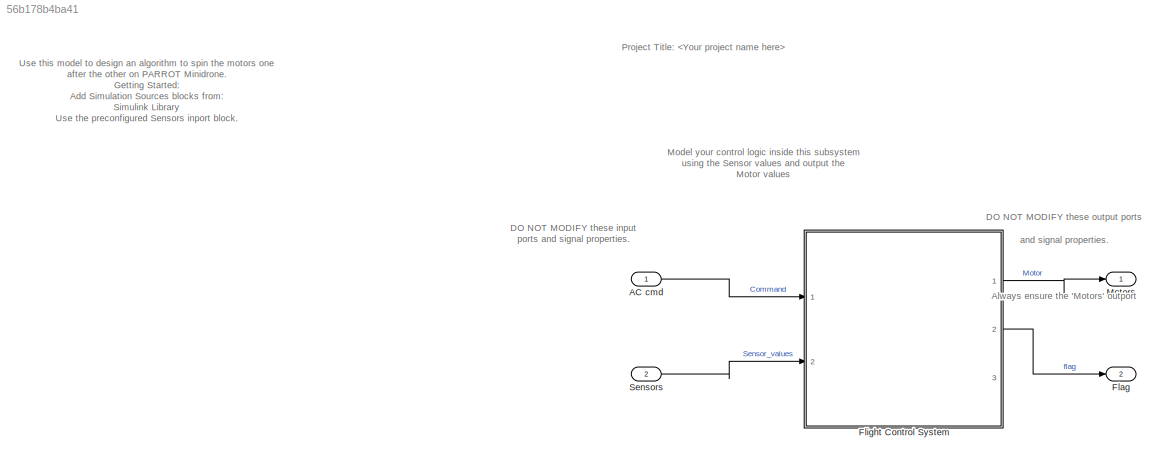
MODEL slx_56b178b4ba41
KIND model
CONFIG AbsTol = auto
CONFIG EnableMultiTasking = off
CONFIG FixedStep = auto
CONFIG InitFcn = load('BusDefinitions.mat')
CONFIG MaxStep = auto
CONFIG MinStep = auto
CONFIG RelTol = 1e-3
CONFIG SampleTimeConstraint = Unconstrained
CONFIG SolverName = FixedStepAuto
CONFIG StartTime = 0.0
CONFIG StopTime = 10
BLOCK [Inport] AC cmd
  BusOutputAsStruct = on
  OutDataTypeStr = Bus: CommandBus
BLOCK [Outport] Flag
  OutDataTypeStr = uint8
  Port = 2
  PortDimensions = 1
  VectorParamsAs1DForOutWhenUnconnected = off
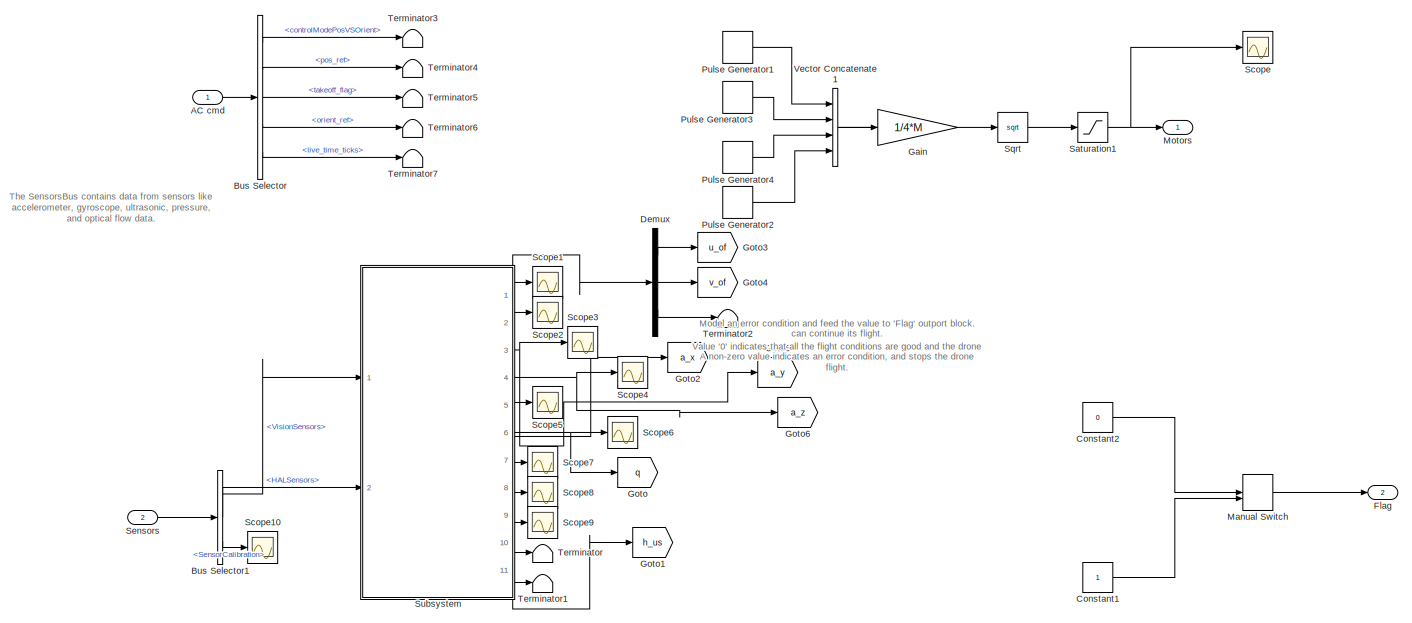
[diagram: Flight Control System - part 1/2, center side, full height]
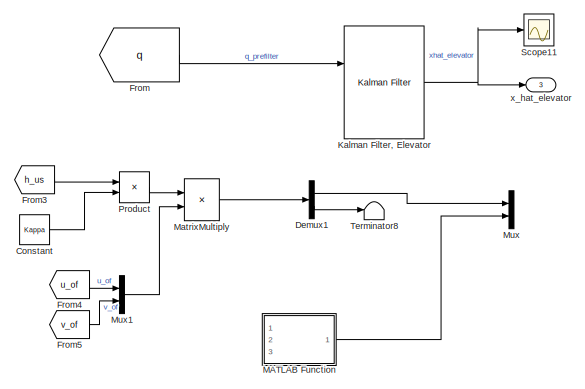
[diagram: Flight Control System - part 2/2, bottom left region]
BLOCK [SubSystem] Flight Control System
  InitFcn = codertarget.parrot.internal.fcsSubsystemCallback(gcb);
  Ports = [2, 3]
  RTWSystemCode = Reusable function
  RequestExecContextInheritance = off
BLOCK [Inport] Flight Control System/AC cmd
BLOCK [BusSelector] Flight Control System/Bus Selector
  OutputSignals = controlModePosVSOrient,pos_ref,takeoff_flag,orient_ref,live_time_ticks
  Ports = [1, 5]
BLOCK [BusSelector] Flight Control System/Bus Selector1
  OutputSignals = VisionSensors,HALSensors,SensorCalibration
  Ports = [1, 3]
BLOCK [Constant] Flight Control System/Constant
  Value = Kappa
BLOCK [Constant] Flight Control System/Constant1
  OutDataTypeStr = uint8
BLOCK [Constant] Flight Control System/Constant2
  OutDataTypeStr = uint8
  Value = 0
BLOCK [Demux] Flight Control System/Demux
  Outputs = 3
  Ports = [1, 3]
BLOCK [Demux] Flight Control System/Demux1
  Outputs = 2
  Ports = [1, 2]
BLOCK [Outport] Flight Control System/Flag
  Port = 2
  VectorParamsAs1DForOutWhenUnconnected = off
BLOCK [From] Flight Control System/From
  GotoTag = q
BLOCK [From] Flight Control System/From3
  GotoTag = h_us
BLOCK [From] Flight Control System/From4
  GotoTag = u_of
BLOCK [From] Flight Control System/From5
  GotoTag = v_of
BLOCK [Gain] Flight Control System/Gain
  Gain = 1/4*M
  Multiplication = Matrix(K*u)
BLOCK [Goto] Flight Control System/Goto
  GotoTag = q
BLOCK [Goto] Flight Control System/Goto1
  GotoTag = h_us
BLOCK [Goto] Flight Control System/Goto2
  GotoTag = a_x
BLOCK [Goto] Flight Control System/Goto3
  GotoTag = u_of
BLOCK [Goto] Flight Control System/Goto4
  GotoTag = v_of
BLOCK [Goto] Flight Control System/Goto5
  GotoTag = a_y
BLOCK [Goto] Flight Control System/Goto6
  GotoTag = a_z
BLOCK [Reference] Flight Control System/Kalman Filter, Elevator  REF=ctrlSharedLib/Kalman Filter
  Ports = [2, 1]
  SourceBlock = ctrlSharedLib/Kalman Filter
  SourceProductBaseCode = CT,ID
  SourceType = ctrlKalmanFilter
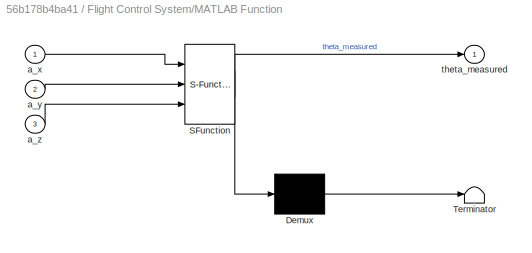
BLOCK [SubSystem] Flight Control System/MATLAB Function
  ErrorFcn = Stateflow.Translate.translate
  PermitHierarchicalResolution = ExplicitOnly
  Ports = [3, 1]
  RequestExecContextInheritance = off
  SFBlockType = MATLAB Function
  TreatAsAtomicUnit = on
BLOCK [Demux] Flight Control System/MATLAB Function/ Demux 
  Outputs = 1
  Ports = [1, 1]
BLOCK [S-Function] Flight Control System/MATLAB Function/ SFunction 
  EnableBusSupport = off
  FunctionName = sf_sfun
  PortCounts = [3 2]
  Ports = [3, 2]
  SFcnIsStateOwnerBlock = off
  SFunctionDeploymentMode = off
  Tag = Stateflow S-Function 2
BLOCK [Terminator] Flight Control System/MATLAB Function/ Terminator 
BLOCK [Inport] Flight Control System/MATLAB Function/a_x
BLOCK [Inport] Flight Control System/MATLAB Function/a_y
  Port = 2
BLOCK [Inport] Flight Control System/MATLAB Function/a_z
  Port = 3
BLOCK [Outport] Flight Control System/MATLAB Function/theta_measured
BLOCK [ManualSwitch] Flight Control System/Manual Switch
BLOCK [Product] Flight Control System/MatrixMultiply
  Ports = [2, 1]
BLOCK [Outport] Flight Control System/Motors
  VectorParamsAs1DForOutWhenUnconnected = off
BLOCK [Mux] Flight Control System/Mux
  DisplayOption = bar
  Inputs = 2
  Ports = [2, 1]
BLOCK [Mux] Flight Control System/Mux1
  DisplayOption = bar
  Inputs = 2
  Ports = [2, 1]
BLOCK [Product] Flight Control System/Product
  Ports = [2, 1]
BLOCK [DiscretePulseGenerator] Flight Control System/Pulse Generator1
  Amplitude = W(1)
  Period = 1600
  Ports = [0, 1]
  PulseWidth = 400
  SampleTime = Ts
BLOCK [DiscretePulseGenerator] Flight Control System/Pulse Generator2
  Amplitude = W(4)
  Period = 1600
  PhaseDelay = 1200
  Ports = [0, 1]
  PulseWidth = 400
  SampleTime = Ts
BLOCK [DiscretePulseGenerator] Flight Control System/Pulse Generator3
  Amplitude = W(2)
  Period = 1600
  PhaseDelay = 400
  Ports = [0, 1]
  PulseWidth = 400
  SampleTime = Ts
BLOCK [DiscretePulseGenerator] Flight Control System/Pulse Generator4
  Amplitude = W(3)
  Period = 1600
  PhaseDelay = 800
  Ports = [0, 1]
  PulseWidth = 400
  SampleTime = Ts
BLOCK [Saturate] Flight Control System/Saturation1
  LowerLimit = 0
  OutDataTypeStr = single
  UpperLimit = 500
BLOCK [Scope] Flight Control System/Scope
  Floating = off
  NumInputPorts = 1
  Ports = [1]
  ScopeSpecificationString = Simulink.scopes.TimeScopeBlockCfg('CurrentConfiguration', extmgr.ConfigurationSet(extmgr.Configuration('Core','General UI',true),extmgr.Configuration('Core','Source UI',true),extmgr.Configuration('Sources','WiredSimulink',true,'DataLoggingVariableName','motor_speeds','DataLogging',true,'DataLoggingSaveFormat','StructureWithTime'),extmgr.Configuration('Visuals','Time Domain',true,'SerializedDisplay...<+1382ch>
BLOCK [Scope] Flight Control System/Scope1
  Floating = off
  NumInputPorts = 1
  Ports = [1]
  ScopeSpecificationString = Simulink.scopes.TimeScopeBlockCfg('CurrentConfiguration', extmgr.ConfigurationSet(extmgr.Configuration('Core','General UI',true),extmgr.Configuration('Core','Source UI',true),extmgr.Configuration('Sources','WiredSimulink',true,'DataLoggingVariableName','optical_flow','DataLogging',true,'DataLoggingSaveFormat','StructureWithTime'),extmgr.Configuration('Visuals','Time Domain',true,'SerializedDisplay...<+1437ch>
BLOCK [Scope] Flight Control System/Scope10
  Floating = off
  NumInputPorts = 1
  Ports = [1]
  ScopeSpecificationString = Simulink.scopes.TimeScopeBlockCfg('CurrentConfiguration', extmgr.ConfigurationSet(extmgr.Configuration('Core','General UI',true),extmgr.Configuration('Core','Source UI',true),extmgr.Configuration('Sources','WiredSimulink',true,'DataLoggingVariableName','initial_sensor_data','DataLogging',true,'DataLoggingSaveFormat','StructureWithTime'),extmgr.Configuration('Visuals','Time Domain',true,'Serialized...<+1444ch>
BLOCK [Scope] Flight Control System/Scope11
  Floating = off
  NumInputPorts = 1
  Ports = [1]
  ScopeSpecificationString = Simulink.scopes.TimeScopeBlockCfg('CurrentConfiguration', extmgr.ConfigurationSet(extmgr.Configuration('Core','General UI',true),extmgr.Configuration('Core','Source UI',true),extmgr.Configuration('Sources','WiredSimulink',true,'DataLoggingVariableName','ScopeData1'),extmgr.Configuration('Visuals','Time Domain',true),extmgr.Configuration('Tools','Plot Navigation',true),extmgr.Configuration('Tools',...<+40ch>
BLOCK [Scope] Flight Control System/Scope2
  Floating = off
  NumInputPorts = 1
  Ports = [1]
  ScopeSpecificationString = Simulink.scopes.TimeScopeBlockCfg('CurrentConfiguration', extmgr.ConfigurationSet(extmgr.Configuration('Core','General UI',true),extmgr.Configuration('Core','Source UI',true),extmgr.Configuration('Sources','WiredSimulink',true,'DataLoggingVariableName','a_x','DataLogging',true,'DataLoggingSaveFormat','StructureWithTime'),extmgr.Configuration('Visuals','Time Domain',true,'SerializedDisplays',{struc...<+1428ch>
BLOCK [Scope] Flight Control System/Scope3
  Floating = off
  NumInputPorts = 1
  Ports = [1]
  ScopeSpecificationString = Simulink.scopes.TimeScopeBlockCfg('CurrentConfiguration', extmgr.ConfigurationSet(extmgr.Configuration('Core','General UI',true),extmgr.Configuration('Core','Source UI',true),extmgr.Configuration('Sources','WiredSimulink',true,'DataLoggingVariableName','a_y','DataLogging',true,'DataLoggingSaveFormat','StructureWithTime'),extmgr.Configuration('Visuals','Time Domain',true,'SerializedDisplays',{struc...<+1428ch>
BLOCK [Scope] Flight Control System/Scope4
  Floating = off
  NumInputPorts = 1
  Ports = [1]
  ScopeSpecificationString = Simulink.scopes.TimeScopeBlockCfg('CurrentConfiguration', extmgr.ConfigurationSet(extmgr.Configuration('Core','General UI',true),extmgr.Configuration('Core','Source UI',true),extmgr.Configuration('Sources','WiredSimulink',true,'DataLoggingVariableName','a_z','DataLogging',true,'DataLoggingSaveFormat','StructureWithTime'),extmgr.Configuration('Visuals','Time Domain',true,'SerializedDisplays',{struc...<+1428ch>
BLOCK [Scope] Flight Control System/Scope5
  Floating = off
  NumInputPorts = 1
  Ports = [1]
  ScopeSpecificationString = Simulink.scopes.TimeScopeBlockCfg('CurrentConfiguration', extmgr.ConfigurationSet(extmgr.Configuration('Core','General UI',true),extmgr.Configuration('Core','Source UI',true),extmgr.Configuration('Sources','WiredSimulink',true,'DataLoggingVariableName','p','DataLogging',true,'DataLoggingSaveFormat','StructureWithTime'),extmgr.Configuration('Visuals','Time Domain',true,'SerializedDisplays',{struct(...<+1426ch>
BLOCK [Scope] Flight Control System/Scope6
  Floating = off
  NumInputPorts = 1
  Ports = [1]
  ScopeSpecificationString = Simulink.scopes.TimeScopeBlockCfg('CurrentConfiguration', extmgr.ConfigurationSet(extmgr.Configuration('Core','General UI',true),extmgr.Configuration('Core','Source UI',true),extmgr.Configuration('Sources','WiredSimulink',true,'DataLoggingVariableName','q','DataLogging',true,'DataLoggingSaveFormat','StructureWithTime'),extmgr.Configuration('Visuals','Time Domain',true,'SerializedDisplays',{struct(...<+1426ch>
BLOCK [Scope] Flight Control System/Scope7
  Floating = off
  NumInputPorts = 1
  Ports = [1]
  ScopeSpecificationString = Simulink.scopes.TimeScopeBlockCfg('CurrentConfiguration', extmgr.ConfigurationSet(extmgr.Configuration('Core','General UI',true),extmgr.Configuration('Core','Source UI',true),extmgr.Configuration('Sources','WiredSimulink',true,'DataLoggingVariableName','r','DataLogging',true,'DataLoggingSaveFormat','StructureWithTime'),extmgr.Configuration('Visuals','Time Domain',true,'SerializedDisplays',{struct(...<+1426ch>
BLOCK [Scope] Flight Control System/Scope8
  Floating = off
  NumInputPorts = 1
  Ports = [1]
  ScopeSpecificationString = Simulink.scopes.TimeScopeBlockCfg('CurrentConfiguration', extmgr.ConfigurationSet(extmgr.Configuration('Core','General UI',true),extmgr.Configuration('Core','Source UI',true),extmgr.Configuration('Sources','WiredSimulink',true,'DataLoggingVariableName','pressure','DataLogging',true,'DataLoggingSaveFormat','StructureWithTime'),extmgr.Configuration('Visuals','Time Domain',true,'SerializedDisplays',{...<+1433ch>
BLOCK [Scope] Flight Control System/Scope9
  Floating = off
  NumInputPorts = 1
  Ports = [1]
  ScopeSpecificationString = Simulink.scopes.TimeScopeBlockCfg('CurrentConfiguration', extmgr.ConfigurationSet(extmgr.Configuration('Core','General UI',true),extmgr.Configuration('Core','Source UI',true),extmgr.Configuration('Sources','WiredSimulink',true,'DataLoggingVariableName','z_ultrasonic','DataLogging',true,'DataLoggingSaveFormat','StructureWithTime'),extmgr.Configuration('Visuals','Time Domain',true,'SerializedDisplay...<+1437ch>
BLOCK [Inport] Flight Control System/Sensors
  Port = 2
BLOCK [Sqrt] Flight Control System/Sqrt
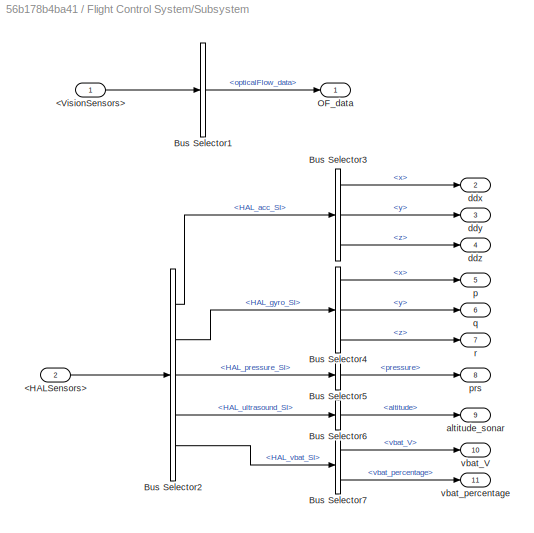
BLOCK [SubSystem] Flight Control System/Subsystem
  Ports = [2, 11]
  RequestExecContextInheritance = off
BLOCK [Inport] Flight Control System/Subsystem/<HALSensors>
  Port = 2
BLOCK [Inport] Flight Control System/Subsystem/<VisionSensors>
BLOCK [BusSelector] Flight Control System/Subsystem/Bus Selector1
  OutputSignals = opticalFlow_data
  Ports = [1, 1]
BLOCK [BusSelector] Flight Control System/Subsystem/Bus Selector2
  OutputSignals = HAL_acc_SI,HAL_gyro_SI,HAL_pressure_SI,HAL_ultrasound_SI,HAL_vbat_SI
  Ports = [1, 5]
BLOCK [BusSelector] Flight Control System/Subsystem/Bus Selector3
  OutputSignals = x,y,z
  Ports = [1, 3]
BLOCK [BusSelector] Flight Control System/Subsystem/Bus Selector4
  OutputSignals = x,y,z
  Ports = [1, 3]
BLOCK [BusSelector] Flight Control System/Subsystem/Bus Selector5
  OutputSignals = pressure
  Ports = [1, 1]
BLOCK [BusSelector] Flight Control System/Subsystem/Bus Selector6
  OutputSignals = altitude
  Ports = [1, 1]
BLOCK [BusSelector] Flight Control System/Subsystem/Bus Selector7
  OutputSignals = vbat_V,vbat_percentage
  Ports = [1, 2]
BLOCK [Outport] Flight Control System/Subsystem/OF_data
  VectorParamsAs1DForOutWhenUnconnected = off
BLOCK [Outport] Flight Control System/Subsystem/altitude_sonar
  Port = 9
  VectorParamsAs1DForOutWhenUnconnected = off
BLOCK [Outport] Flight Control System/Subsystem/ddx
  Port = 2
  VectorParamsAs1DForOutWhenUnconnected = off
BLOCK [Outport] Flight Control System/Subsystem/ddy
  Port = 3
  VectorParamsAs1DForOutWhenUnconnected = off
BLOCK [Outport] Flight Control System/Subsystem/ddz
  Port = 4
  VectorParamsAs1DForOutWhenUnconnected = off
BLOCK [Outport] Flight Control System/Subsystem/p
  Port = 5
  VectorParamsAs1DForOutWhenUnconnected = off
BLOCK [Outport] Flight Control System/Subsystem/prs
  Port = 8
  VectorParamsAs1DForOutWhenUnconnected = off
BLOCK [Outport] Flight Control System/Subsystem/q
  Port = 6
  VectorParamsAs1DForOutWhenUnconnected = off
BLOCK [Outport] Flight Control System/Subsystem/r
  Port = 7
  VectorParamsAs1DForOutWhenUnconnected = off
BLOCK [Outport] Flight Control System/Subsystem/vbat_V
  Port = 10
  VectorParamsAs1DForOutWhenUnconnected = off
BLOCK [Outport] Flight Control System/Subsystem/vbat_percentage
  Port = 11
  VectorParamsAs1DForOutWhenUnconnected = off
BLOCK [Terminator] Flight Control System/Terminator
BLOCK [Terminator] Flight Control System/Terminator1
BLOCK [Terminator] Flight Control System/Terminator2
BLOCK [Terminator] Flight Control System/Terminator3
BLOCK [Terminator] Flight Control System/Terminator4
BLOCK [Terminator] Flight Control System/Terminator5
BLOCK [Terminator] Flight Control System/Terminator6
BLOCK [Terminator] Flight Control System/Terminator7
BLOCK [Terminator] Flight Control System/Terminator8
BLOCK [Concatenate] Flight Control System/Vector Concatenate1
  NumInputs = 4
  Ports = [4, 1]
BLOCK [Outport] Flight Control System/x_hat_elevator
  Port = 3
BLOCK [Outport] Motors
  OutDataTypeStr = single
  PortDimensions = [1 4]
  VectorParamsAs1DForOutWhenUnconnected = off
BLOCK [Inport] Sensors
  BusOutputAsStruct = on
  OutDataTypeStr = Bus: SensorsBus
  Port = 2
ANNOTATION (root): Use this model to design an algorithm to spin the motors one after the other on PARROT Minidrone. Getting Started: Add Simulation Sources blocks from: Simulink Library Use the preconfigured Sensors inport block. Configure Parrot Minidrone hardware: Open Model Configuration Parameters dialog Under the Hardware Implementation option, select the desired PARROT Minidrone from the Hardware board parame...<+465ch>
ANNOTATION (root): DO NOT MODIFY these input ports and signal properties.
ANNOTATION (root): DO NOT MODIFY these output ports and signal properties. Always ensure the 'Motors' outport is fed with a 1 x 4 single vector. Always ensure the 'Flag' outport is fed with a 1 x 1 uint8 value.
ANNOTATION (root): Model your control logic inside this subsystem using the Sensor values and output the Motor values
ANNOTATION (root): Project Title:
ANNOTATION Flight Control System: Model an error condition and feed the value to 'Flag' outport block. Value '0' indicates that all the flight conditions are good and the drone can continue its flight. A non-zero value indicates an error condition, and stops the drone flight.
ANNOTATION Flight Control System: The SensorsBus contains data from sensors like accelerometer, gyroscope, ultrasonic, pressure, and optical flow data.
LINE AC cmd:1 -> Flight Control System:1
LINE Flight Control System/AC cmd:1 -> Flight Control System/Bus Selector:1
LINE Flight Control System/Bus Selector1:1 -> Flight Control System/Subsystem:1
LINE Flight Control System/Bus Selector1:2 -> Flight Control System/Subsystem:2
LINE Flight Control System/Bus Selector1:3 -> Flight Control System/Scope10:1
LINE Flight Control System/Bus Selector:1 -> Flight Control System/Terminator3:1
LINE Flight Control System/Bus Selector:2 -> Flight Control System/Terminator4:1
LINE Flight Control System/Bus Selector:3 -> Flight Control System/Terminator5:1
LINE Flight Control System/Bus Selector:4 -> Flight Control System/Terminator6:1
LINE Flight Control System/Bus Selector:5 -> Flight Control System/Terminator7:1
LINE Flight Control System/Constant1:1 -> Flight Control System/Manual Switch:2
LINE Flight Control System/Constant2:1 -> Flight Control System/Manual Switch:1
LINE Flight Control System/Constant:1 -> Flight Control System/Product:2
LINE Flight Control System/Demux1:1 -> Flight Control System/Mux:1
LINE Flight Control System/Demux1:2 -> Flight Control System/Terminator8:1
LINE Flight Control System/Demux:1 -> Flight Control System/Goto3:1
LINE Flight Control System/Demux:2 -> Flight Control System/Goto4:1
LINE Flight Control System/Demux:3 -> Flight Control System/Terminator2:1
LINE Flight Control System/From3:1 -> Flight Control System/Product:1
LINE Flight Control System/From4:1 -> Flight Control System/Mux1:1
LINE Flight Control System/From5:1 -> Flight Control System/Mux1:2
LINE Flight Control System/From:1 -> Flight Control System/Kalman Filter, Elevator:1
LINE Flight Control System/Gain:1 -> Flight Control System/Sqrt:1
NET Flight Control System/Kalman Filter, Elevator:1 -> Flight Control System/Scope11:1, Flight Control System/x_hat_elevator:1
LINE Flight Control System/MATLAB Function:1 -> Flight Control System/Mux:2
LINE Flight Control System/Manual Switch:1 -> Flight Control System/Flag:1
LINE Flight Control System/MatrixMultiply:1 -> Flight Control System/Demux1:1
LINE Flight Control System/Mux1:1 -> Flight Control System/MatrixMultiply:2
LINE Flight Control System/Product:1 -> Flight Control System/MatrixMultiply:1
LINE Flight Control System/Pulse Generator1:1 -> Flight Control System/Vector Concatenate1:1
LINE Flight Control System/Pulse Generator2:1 -> Flight Control System/Vector Concatenate1:4
LINE Flight Control System/Pulse Generator3:1 -> Flight Control System/Vector Concatenate1:2
LINE Flight Control System/Pulse Generator4:1 -> Flight Control System/Vector Concatenate1:3
NET Flight Control System/Saturation1:1 -> Flight Control System/Motors:1, Flight Control System/Scope:1
LINE Flight Control System/Sensors:1 -> Flight Control System/Bus Selector1:1
LINE Flight Control System/Sqrt:1 -> Flight Control System/Saturation1:1
LINE Flight Control System/Subsystem/<HALSensors>:1 -> Flight Control System/Subsystem/Bus Selector2:1
LINE Flight Control System/Subsystem/<VisionSensors>:1 -> Flight Control System/Subsystem/Bus Selector1:1
LINE Flight Control System/Subsystem/Bus Selector1:1 -> Flight Control System/Subsystem/OF_data:1
LINE Flight Control System/Subsystem/Bus Selector2:1 -> Flight Control System/Subsystem/Bus Selector3:1
LINE Flight Control System/Subsystem/Bus Selector2:2 -> Flight Control System/Subsystem/Bus Selector4:1
LINE Flight Control System/Subsystem/Bus Selector2:3 -> Flight Control System/Subsystem/Bus Selector5:1
LINE Flight Control System/Subsystem/Bus Selector2:4 -> Flight Control System/Subsystem/Bus Selector6:1
LINE Flight Control System/Subsystem/Bus Selector2:5 -> Flight Control System/Subsystem/Bus Selector7:1
LINE Flight Control System/Subsystem/Bus Selector3:1 -> Flight Control System/Subsystem/ddx:1
LINE Flight Control System/Subsystem/Bus Selector3:2 -> Flight Control System/Subsystem/ddy:1
LINE Flight Control System/Subsystem/Bus Selector3:3 -> Flight Control System/Subsystem/ddz:1
LINE Flight Control System/Subsystem/Bus Selector4:1 -> Flight Control System/Subsystem/p:1
LINE Flight Control System/Subsystem/Bus Selector4:2 -> Flight Control System/Subsystem/q:1
LINE Flight Control System/Subsystem/Bus Selector4:3 -> Flight Control System/Subsystem/r:1
LINE Flight Control System/Subsystem/Bus Selector5:1 -> Flight Control System/Subsystem/prs:1
LINE Flight Control System/Subsystem/Bus Selector6:1 -> Flight Control System/Subsystem/altitude_sonar:1
LINE Flight Control System/Subsystem/Bus Selector7:1 -> Flight Control System/Subsystem/vbat_V:1
LINE Flight Control System/Subsystem/Bus Selector7:2 -> Flight Control System/Subsystem/vbat_percentage:1
NET Flight Control System/Subsystem:1 -> Flight Control System/Demux:1, Flight Control System/Scope1:1
LINE Flight Control System/Subsystem:10 -> Flight Control System/Terminator:1
LINE Flight Control System/Subsystem:11 -> Flight Control System/Terminator1:1
NET Flight Control System/Subsystem:2 -> Flight Control System/Goto2:1, Flight Control System/Scope2:1
NET Flight Control System/Subsystem:3 -> Flight Control System/Goto5:1, Flight Control System/Scope3:1
NET Flight Control System/Subsystem:4 -> Flight Control System/Goto6:1, Flight Control System/Scope4:1
LINE Flight Control System/Subsystem:5 -> Flight Control System/Scope5:1
NET Flight Control System/Subsystem:6 -> Flight Control System/Goto:1, Flight Control System/Scope6:1
LINE Flight Control System/Subsystem:7 -> Flight Control System/Scope7:1
LINE Flight Control System/Subsystem:8 -> Flight Control System/Scope8:1
NET Flight Control System/Subsystem:9 -> Flight Control System/Goto1:1, Flight Control System/Scope9:1
LINE Flight Control System/Vector Concatenate1:1 -> Flight Control System/Gain:1
LINE Flight Control System:1 -> Motors:1
LINE Flight Control System:2 -> Flag:1
LINE Sensors:1 -> Flight Control System:2
note: NET lines group one-source signal fan-out (src -> all destinations, sorted); 1:1 wires keep LINE
CHART Flight Control System/MATLAB Function states=1 transitions=1
  STATE_LABEL 'eML_blk_kernel()'
  STATE_LABEL 'SCRIPT:\nfunction theta_measured = fcn(a_x,a_y,a_z)\ntheta_measured = -a_x / sqrt(a_y^2 + a_z^2);\n'
CHART  states=0 transitions=0
